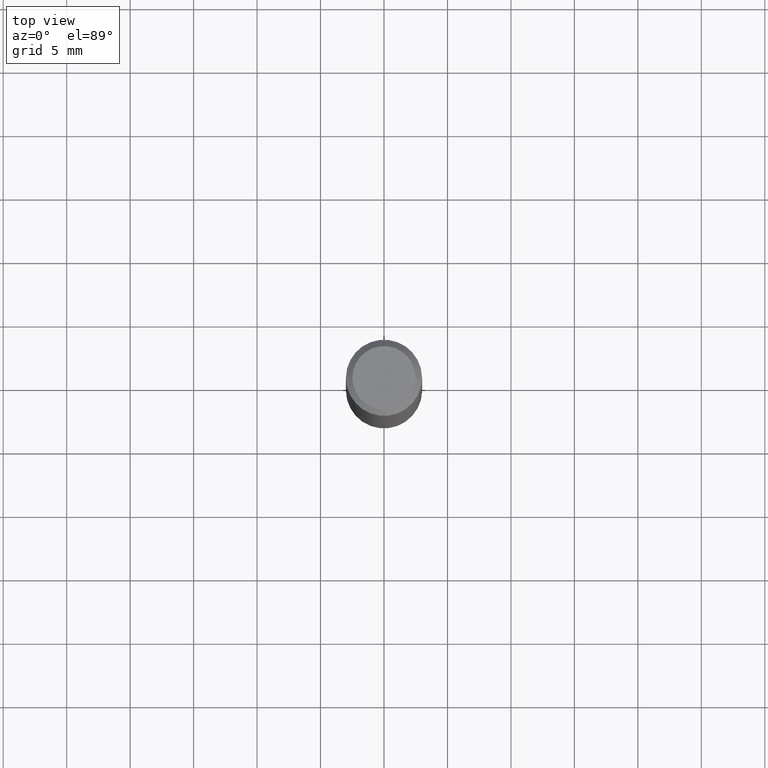
[diagram: clean part render]
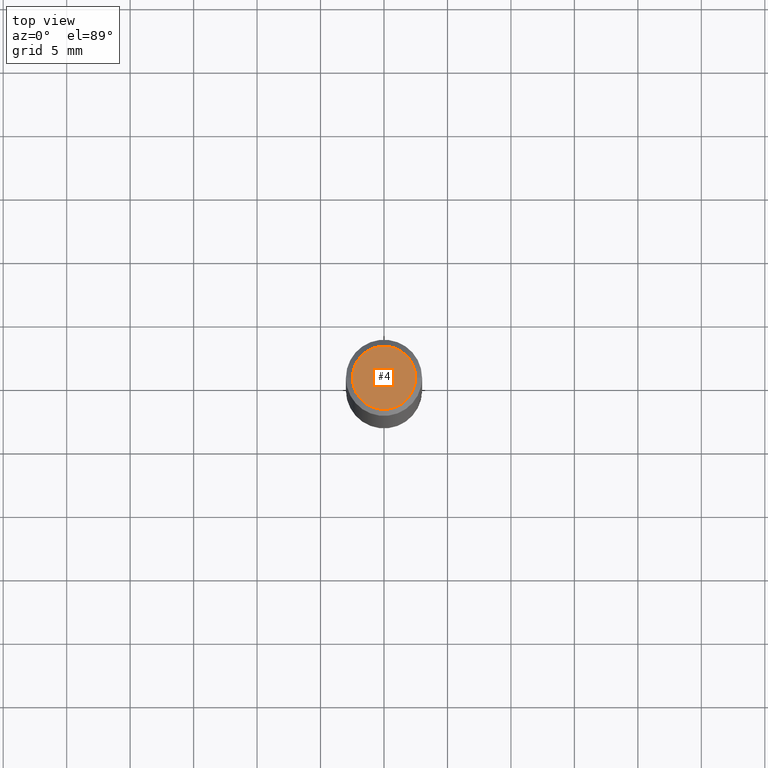
[diagram: same view with one face highlighted and labeled with its STEP entity id]
A machine part, top view. The second image highlights one B-rep face of the part: STEP entity #4.
In plain terms, the highlighted planar face has unit normal (0, -0, -1).
Its self-contained STEP definition (entity closure, byte-faithful):
#4 = ADVANCED_FACE ( 'NONE', ( #225 ), #279, .F. ) ;
#5 = AXIS2_PLACEMENT_3D ( 'NONE', #308, #343, #342 ) ;
#14 = DIRECTION ( 'NONE',  ( -2.445468806185136597E-29, 3.491481338843145583E-15, 1.000000000000000000 ) ) ;
#31 = DIRECTION ( 'NONE',  ( -2.445468806185136597E-29, 3.491481338843145583E-15, 1.000000000000000000 ) ) ;
#63 = DIRECTION ( 'NONE',  ( 1.000000000000000000, -6.982962677686266711E-15, 4.877161320636775200E-29 ) ) ;
#73 = VERTEX_POINT ( 'NONE', #235 ) ;
#89 = AXIS2_PLACEMENT_3D ( 'NONE', #307, #31, #63 ) ;
#117 = CARTESIAN_POINT ( 'NONE',  ( -0.09809999999999984011, 7.199434520694526251E-16, -4.695363739110943904E-17 ) ) ;
#156 = ORIENTED_EDGE ( 'NONE', *, *, #169, .T. ) ;
#160 = CIRCLE ( 'NONE', #89, 0.09809999999999984011 ) ;
#169 = EDGE_CURVE ( 'NONE', #174, #73, #250, .T. ) ;
#174 = VERTEX_POINT ( 'NONE', #117 ) ;
#192 = AXIS2_PLACEMENT_3D ( 'NONE', #261, #14, #323 ) ;
#199 = EDGE_LOOP ( 'NONE', ( #156, #201 ) ) ;
#201 = ORIENTED_EDGE ( 'NONE', *, *, #310, .T. ) ;
#225 = FACE_OUTER_BOUND ( 'NONE', #199, .T. ) ;
#235 = CARTESIAN_POINT ( 'NONE',  ( 0.09809999999999984011, -7.765346469475330681E-16, -4.695363739109941188E-17 ) ) ;
#250 = CIRCLE ( 'NONE', #192, 0.09809999999999984011 ) ;
#261 = CARTESIAN_POINT ( 'NONE',  ( 1.148236555768741665E-45, -1.639377487418492057E-31, -4.695363739110452099E-17 ) ) ;
#279 = PLANE ( 'NONE',  #5 ) ;
#307 = CARTESIAN_POINT ( 'NONE',  ( 1.148236555768741665E-45, -1.639377487418492057E-31, -4.695363739110452099E-17 ) ) ;
#308 = CARTESIAN_POINT ( 'NONE',  ( 6.850286386810215676E-16, 0.09809999999999984011, -3.659911380360642646E-16 ) ) ;
#310 = EDGE_CURVE ( 'NONE', #73, #174, #160, .T. ) ;
#323 = DIRECTION ( 'NONE',  ( 1.000000000000000000, -6.982962677686266711E-15, 4.877161320636775200E-29 ) ) ;
#342 = DIRECTION ( 'NONE',  ( -1.000000000000000000, 6.982962677686265922E-15, -4.876176775795935793E-29 ) ) ;
#343 = DIRECTION ( 'NONE',  ( 2.438088387897960049E-29, -3.491481338843145188E-15, -1.000000000000000000 ) ) ;